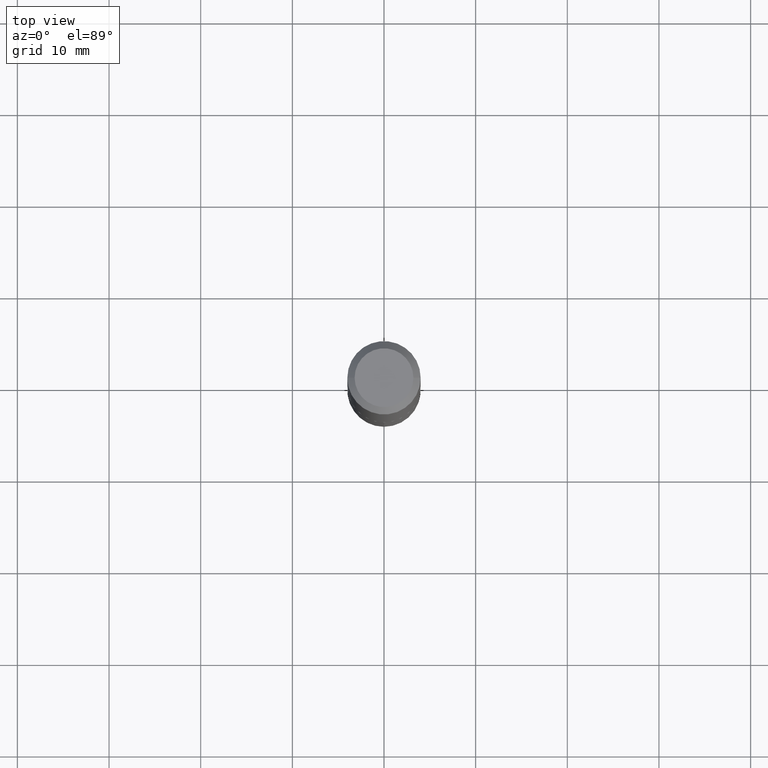
[diagram: clean part render]
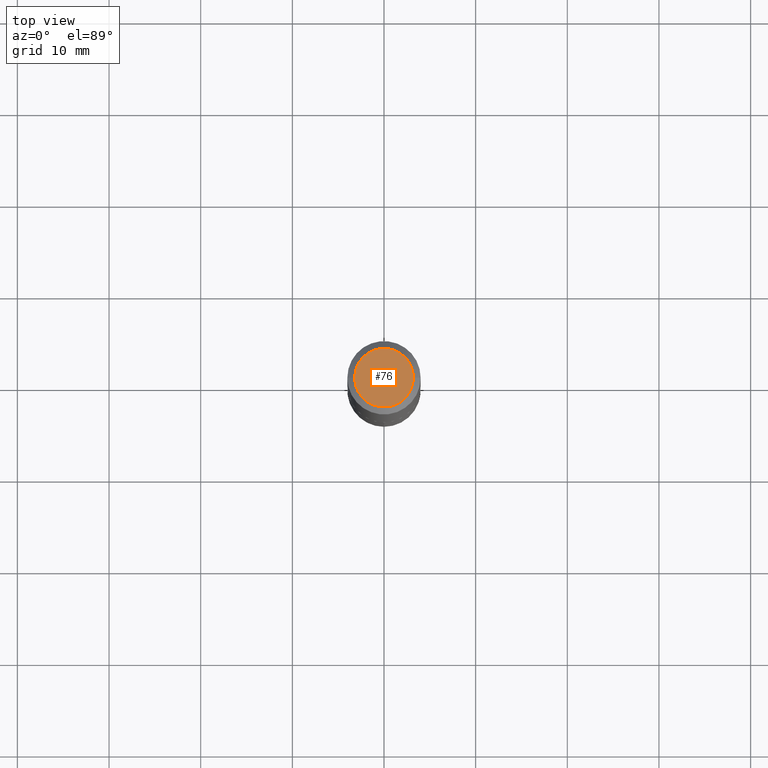
[diagram: same view with one face highlighted and labeled with its STEP entity id]
A machine part, top view. The second image highlights one B-rep face of the part: STEP entity #76.
In plain terms, the highlighted planar face has unit normal (0, -0, -1).
Its self-contained STEP definition (entity closure, byte-faithful):
#40 = EDGE_LOOP ( 'NONE', ( #111, #130 ) ) ;
#50 = VERTEX_POINT ( 'NONE', #376 ) ;
#76 = ADVANCED_FACE ( 'NONE', ( #241 ), #85, .F. ) ;
#85 = PLANE ( 'NONE',  #306 ) ;
#111 = ORIENTED_EDGE ( 'NONE', *, *, #266, .T. ) ;
#114 = DIRECTION ( 'NONE',  ( -1.000000000000000000, 6.982962677686265922E-15, -4.876176775795935793E-29 ) ) ;
#118 = DIRECTION ( 'NONE',  ( -2.445468806185136597E-29, 3.491481338843145583E-15, 1.000000000000000000 ) ) ;
#129 = DIRECTION ( 'NONE',  ( -2.445468806185136597E-29, 3.491481338843145583E-15, 1.000000000000000000 ) ) ;
#130 = ORIENTED_EDGE ( 'NONE', *, *, #302, .T. ) ;
#143 = CARTESIAN_POINT ( 'NONE',  ( -2.994835545909349753E-48, 4.275831445897006817E-34, 1.224646799147362773E-19 ) ) ;
#147 = DIRECTION ( 'NONE',  ( 1.000000000000000000, -6.982962677686267499E-15, 4.876173807581833048E-29 ) ) ;
#164 = VERTEX_POINT ( 'NONE', #304 ) ;
#241 = FACE_OUTER_BOUND ( 'NONE', #40, .T. ) ;
#246 = DIRECTION ( 'NONE',  ( 1.000000000000000000, -6.982962677686267499E-15, 4.876173807581833048E-29 ) ) ;
#266 = EDGE_CURVE ( 'NONE', #50, #164, #338, .T. ) ;
#274 = AXIS2_PLACEMENT_3D ( 'NONE', #279, #129, #147 ) ;
#279 = CARTESIAN_POINT ( 'NONE',  ( -5.989671091818699506E-48, 8.551662891794013634E-34, 2.449293598294725547E-19 ) ) ;
#302 = EDGE_CURVE ( 'NONE', #164, #50, #307, .T. ) ;
#304 = CARTESIAN_POINT ( 'NONE',  ( 0.1262499999999999734, -1.027887549353260543E-15, 2.449293598361487908E-19 ) ) ;
#306 = AXIS2_PLACEMENT_3D ( 'NONE', #143, #374, #114 ) ;
#307 = CIRCLE ( 'NONE', #387, 0.1262499999999999734 ) ;
#338 = CIRCLE ( 'NONE', #274, 0.1262499999999999734 ) ;
#374 = DIRECTION ( 'NONE',  ( 2.438088387897960049E-29, -3.491481338843145188E-15, -1.000000000000000000 ) ) ;
#376 = CARTESIAN_POINT ( 'NONE',  ( -0.1262499999999999734, 9.361534339773144209E-16, 2.449293598231166007E-19 ) ) ;
#379 = CARTESIAN_POINT ( 'NONE',  ( -5.989671091818699506E-48, 8.551662891794013634E-34, 2.449293598294725547E-19 ) ) ;
#387 = AXIS2_PLACEMENT_3D ( 'NONE', #379, #118, #246 ) ;